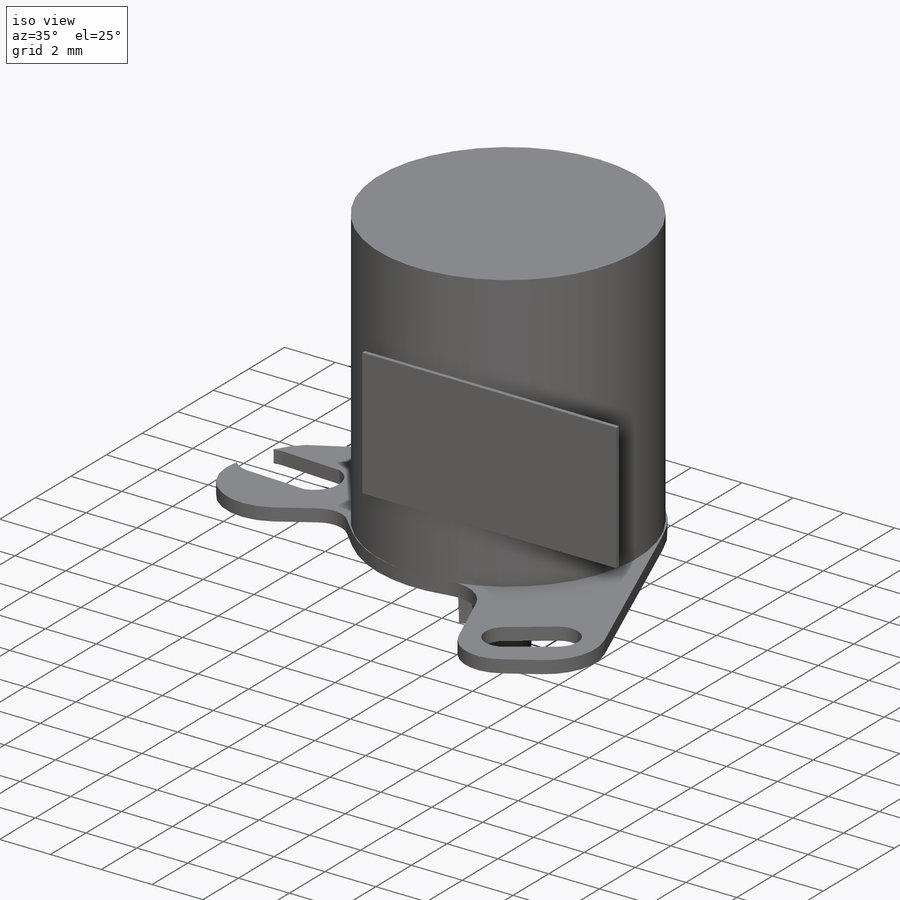
[diagram: iso view]
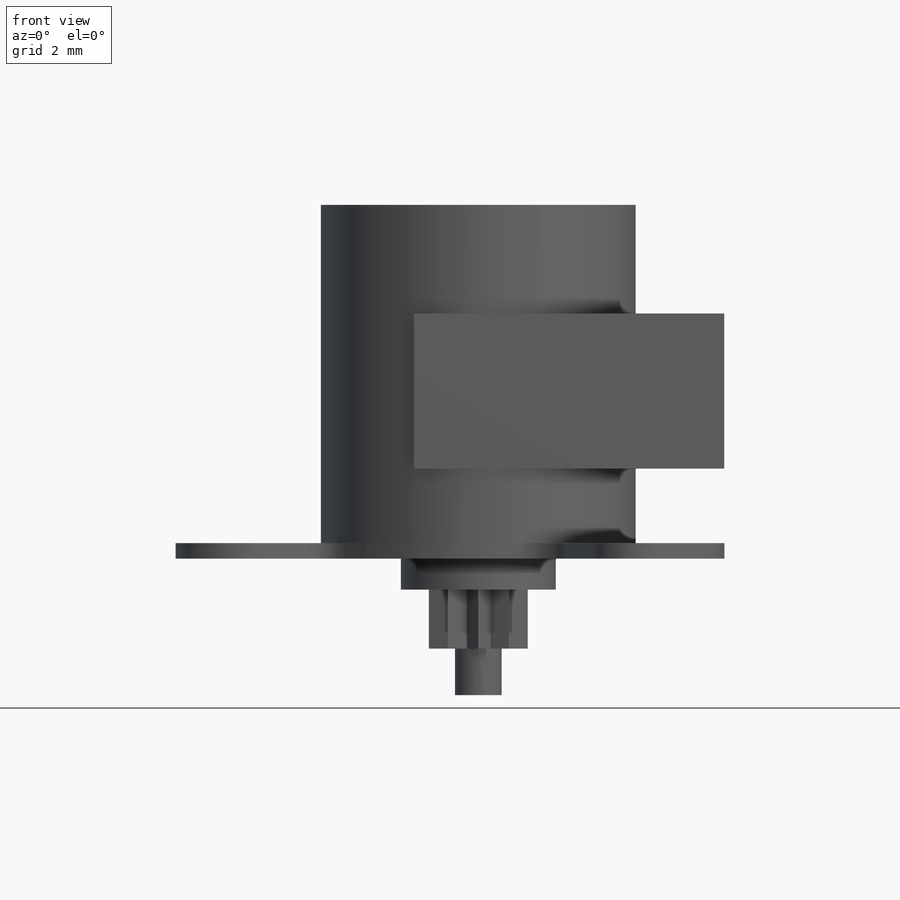
[diagram: front view]
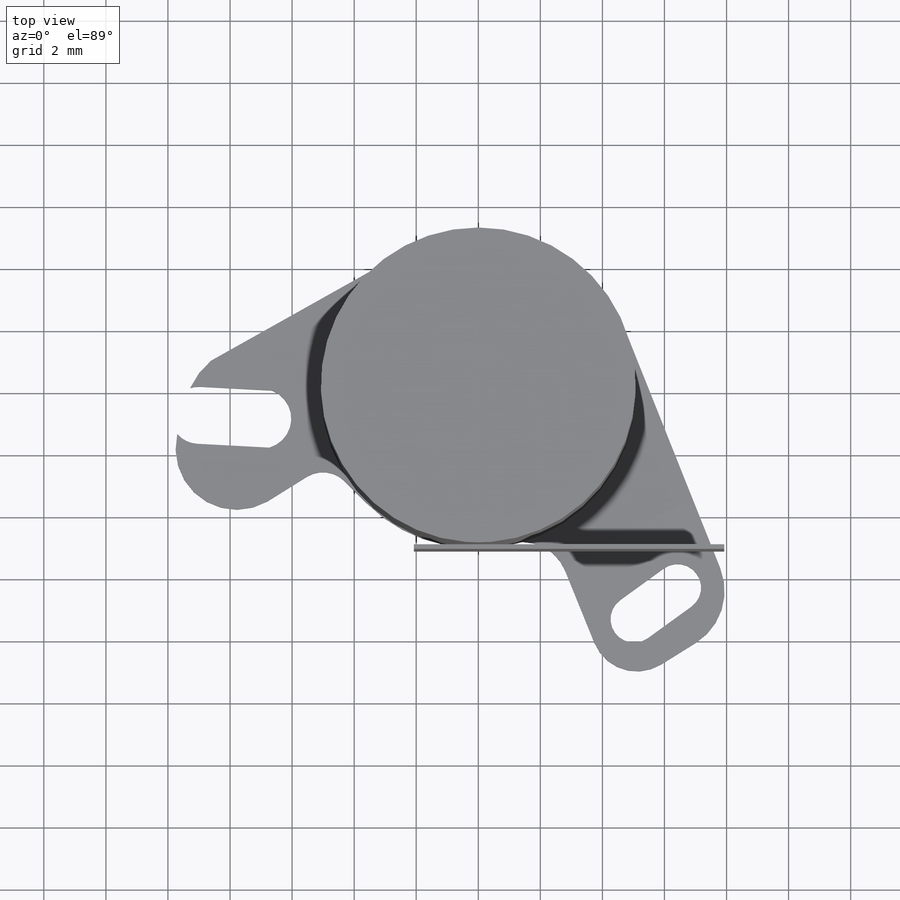
[diagram: top view]
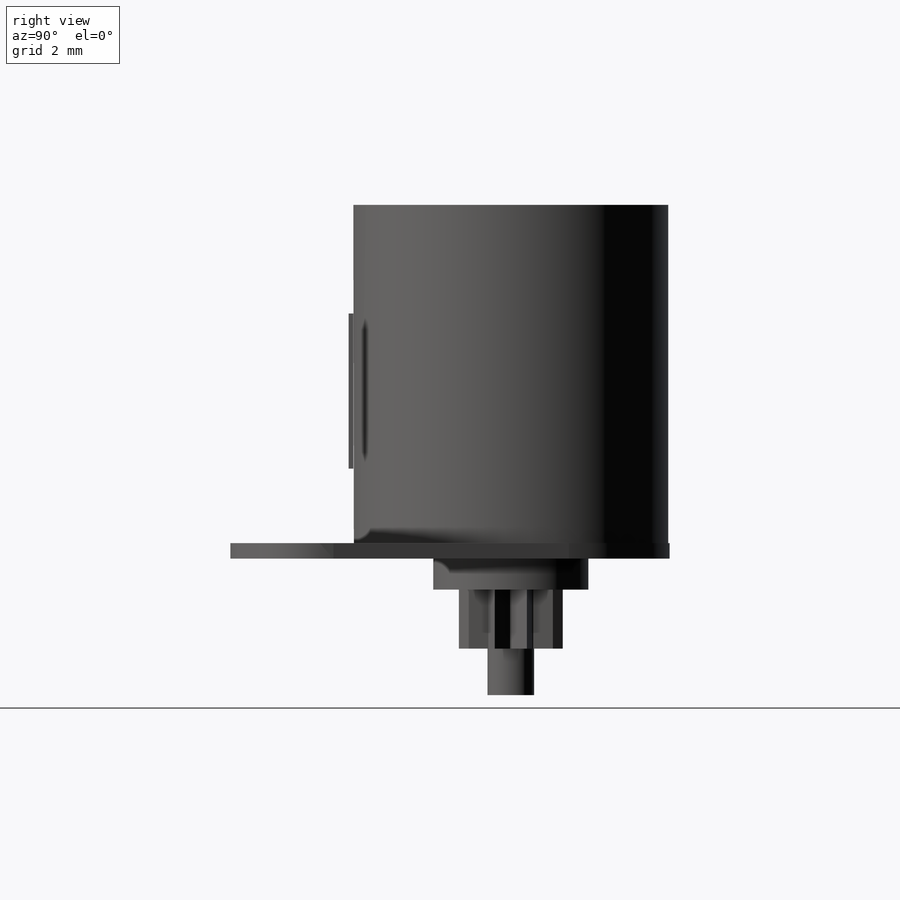
[diagram: right view]
SOLIDWORKS PART (.sldprt)
format: sldprt  version: not decoded by parser v0  size: 1,192,960 bytes
history: native  units: mm
features: sketch x6, extrude x6, plane x2, material x1 (+12 scaffold rows collapsed)
feature tree (27):
  scaffold x12  (default folders/planes/origin — collapsed)
  material  "Material <not specified>"
  sketch  "Sketch1"  dims[D1=10.15mm]
  extrude  "Boss-Extrude1"  Depth=10.9mm
  sketch  "Sketch2"  dims[c1.D1=10.0mm c1.D2=4.0mm c1.D3=3.0mm c1.D4=3.0mm c1.D5=10.0mm c1.D6=2.0mm c2.D1=10.0mm c2.D2=4.0mm c2.D3=3.0mm c2.D4=3.0mm c2.D5=10.0mm c2.D6=2.0mm c3.D1=0.0mm c3.D2=0.0mm]
  extrude  "Boss-Extrude2"  Depth=0.5mm
  sketch  "Sketch3"  dims[D1=5.0mm]
  extrude  "Boss-Extrude3"  Depth=1mm
  sketch  "Sketch5"  dims[D1=1.5mm]
  extrude  "Boss-Extrude4"  Depth=3.4mm
  plane  "Plane2"  Offset=1.5mm
  sketch  "Sketch6"  dims[D1=3.35mm D2=2.4mm D3=0.7mm D4=10.0]
  extrude  "Boss-Extrude5"  Depth=2mm
  plane  "Plane3"
  sketch  "Sketch8"  dims[D1=2.4mm D2=5.0mm D3=10.0mm D4=5.0mm D5=3.0mm]
  extrude  "Boss-Extrude6"  Depth=0.15mm
decode coverage: 12 of 12 modeling features carry decoded parameters
note: suppression state not decoded; provenance and decode notes live in map.json
